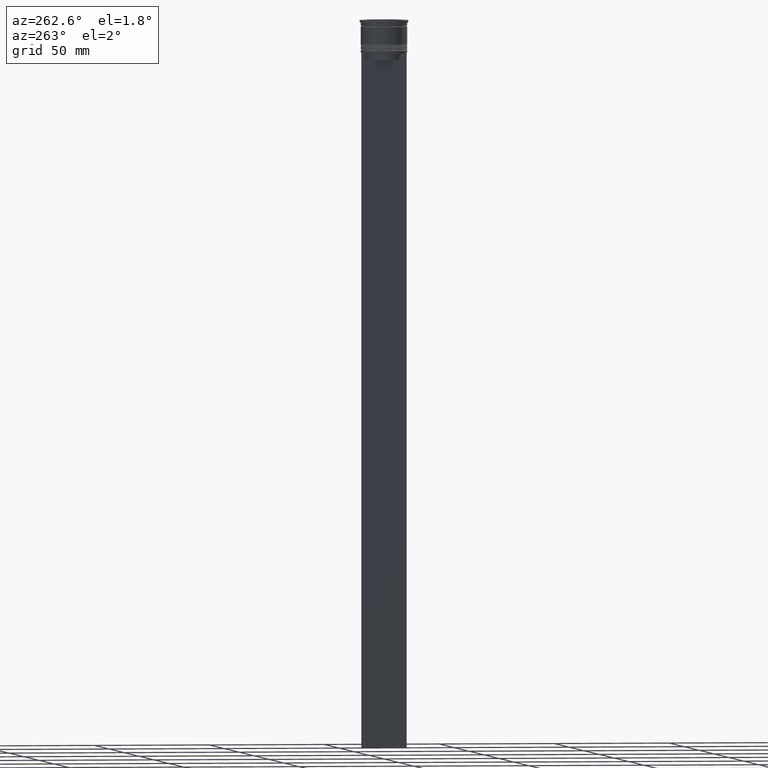
[diagram: clean part render]
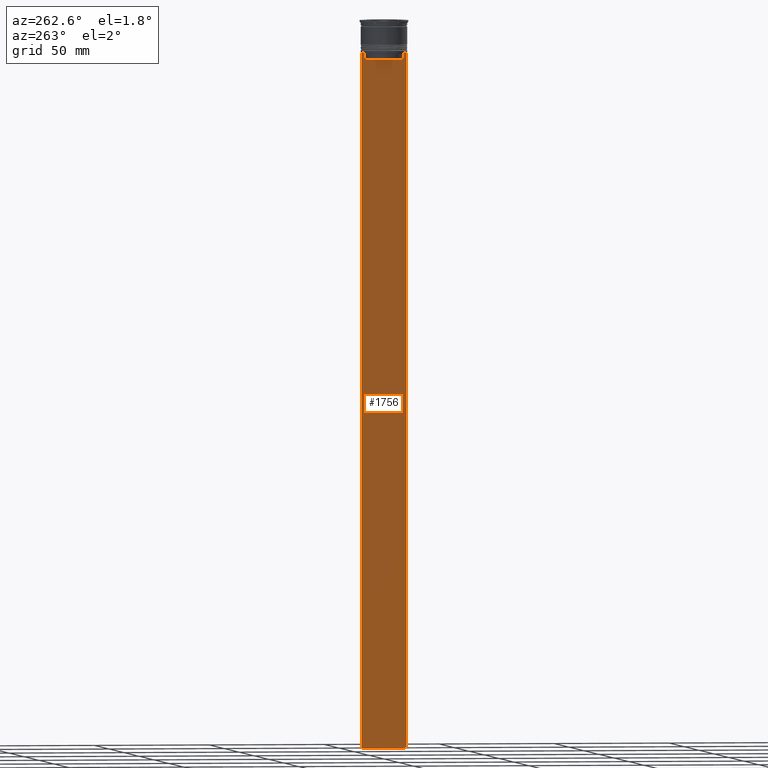
[diagram: same view with one face highlighted and labeled with its STEP entity id]
A machine part, auxiliary view. The second image highlights one B-rep face of the part: STEP entity #1756.
In plain terms, the highlighted planar face has unit normal (-1, 0, 0).
Its self-contained STEP definition (entity closure, byte-faithful):
#19 = VERTEX_POINT ( 'NONE', #1424 ) ;
#92 = CARTESIAN_POINT ( 'NONE',  ( -0.5000000000000001110, -9.749999999999998224, -314.0000000000000000 ) ) ;
#104 = LINE ( 'NONE', #893, #1626 ) ;
#125 = CARTESIAN_POINT ( 'NONE',  ( -0.5000000000000001110, -9.749999999999998224, -14.00000000000000178 ) ) ;
#155 = DIRECTION ( 'NONE',  ( 0.000000000000000000, 0.000000000000000000, -1.000000000000000000 ) ) ;
#158 = DIRECTION ( 'NONE',  ( 0.000000000000000000, -1.000000000000000000, 0.000000000000000000 ) ) ;
#205 = FACE_OUTER_BOUND ( 'NONE', #1524, .T. ) ;
#222 = ORIENTED_EDGE ( 'NONE', *, *, #1122, .F. ) ;
#304 = EDGE_CURVE ( 'NONE', #19, #1820, #2304, .T. ) ;
#335 = VECTOR ( 'NONE', #1508, 1000.000000000000000 ) ;
#380 = CARTESIAN_POINT ( 'NONE',  ( -0.5000000000000001110, -9.749999999999998224, 5.525624189766635830 ) ) ;
#390 = VECTOR ( 'NONE', #155, 1000.000000000000000 ) ;
#461 = AXIS2_PLACEMENT_3D ( 'NONE', #1005, #645, #1784 ) ;
#473 = DIRECTION ( 'NONE',  ( 0.000000000000000000, 1.000000000000000000, 0.000000000000000000 ) ) ;
#474 = VECTOR ( 'NONE', #2316, 1000.000000000000000 ) ;
#523 = CARTESIAN_POINT ( 'NONE',  ( -0.5000000000000001110, 8.552060201981381837, -14.33334167021640226 ) ) ;
#559 = LINE ( 'NONE', #1181, #1093 ) ;
#589 = B_SPLINE_CURVE_WITH_KNOTS ( 'NONE', 3,
 ( #2413, #1822, #2400, #1794 ),
 .UNSPECIFIED., .F., .F.,
 ( 4, 4 ),
 ( 0.03898465126933130243, 0.03969388910599658260 ),
 .UNSPECIFIED. ) ;
#604 = ORIENTED_EDGE ( 'NONE', *, *, #1800, .F. ) ;
#645 = DIRECTION ( 'NONE',  ( -1.000000000000000000, 0.000000000000000000, 0.000000000000000000 ) ) ;
#651 = B_SPLINE_CURVE_WITH_KNOTS ( 'NONE', 3,
 ( #917, #751, #523, #2501 ),
 .UNSPECIFIED., .F., .F.,
 ( 4, 4 ),
 ( 0.01511546479386908018, 0.01582316445439079997 ),
 .UNSPECIFIED. ) ;
#748 = CARTESIAN_POINT ( 'NONE',  ( -0.5000000000000001110, -9.749999999999998224, -14.00000000000000178 ) ) ;
#751 = CARTESIAN_POINT ( 'NONE',  ( -0.5000000000000001110, 8.719005771582351016, -14.16667453442324742 ) ) ;
#763 = LINE ( 'NONE', #380, #390 ) ;
#781 = LINE ( 'NONE', #1001, #1418 ) ;
#784 = EDGE_CURVE ( 'NONE', #1806, #1665, #781, .T. ) ;
#795 = VERTEX_POINT ( 'NONE', #2185 ) ;
#839 = VERTEX_POINT ( 'NONE', #1170 ) ;
#845 = VECTOR ( 'NONE', #158, 1000.000000000000000 ) ;
#872 = ORIENTED_EDGE ( 'NONE', *, *, #1187, .F. ) ;
#893 = CARTESIAN_POINT ( 'NONE',  ( -0.5000000000000001110, -9.749999999999998224, -14.00000000000000178 ) ) ;
#916 = VERTEX_POINT ( 'NONE', #1826 ) ;
#917 = CARTESIAN_POINT ( 'NONE',  ( -0.5000000000000001110, 8.885943956609230199, -14.00000000000000178 ) ) ;
#977 = CARTESIAN_POINT ( 'NONE',  ( -0.5000000000000001110, -9.749999999999998224, -314.0000000000000000 ) ) ;
#1001 = CARTESIAN_POINT ( 'NONE',  ( -0.5000000000000001110, -8.385105843100616241, 0.000000000000000000 ) ) ;
#1005 = CARTESIAN_POINT ( 'NONE',  ( -0.5000000000000001110, -9.749999999999998224, 5.525624189766635830 ) ) ;
#1019 = VERTEX_POINT ( 'NONE', #1402 ) ;
#1093 = VECTOR ( 'NONE', #1388, 1000.000000000000000 ) ;
#1117 = LINE ( 'NONE', #125, #335 ) ;
#1122 = EDGE_CURVE ( 'NONE', #839, #1019, #104, .T. ) ;
#1148 = LINE ( 'NONE', #1325, #845 ) ;
#1170 = CARTESIAN_POINT ( 'NONE',  ( -0.5000000000000001110, 9.749999999999998224, -14.00000000000000178 ) ) ;
#1181 = CARTESIAN_POINT ( 'NONE',  ( -0.5000000000000001110, 9.750000000000001776, 5.525624189766635830 ) ) ;
#1187 = EDGE_CURVE ( 'NONE', #1240, #2547, #763, .T. ) ;
#1192 = CARTESIAN_POINT ( 'NONE',  ( -0.5000000000000001110, 8.385105843100616241, -17.00000000000000000 ) ) ;
#1238 = ORIENTED_EDGE ( 'NONE', *, *, #2458, .F. ) ;
#1240 = VERTEX_POINT ( 'NONE', #748 ) ;
#1249 = EDGE_CURVE ( 'NONE', #839, #916, #559, .T. ) ;
#1325 = CARTESIAN_POINT ( 'NONE',  ( -0.5000000000000001110, 8.400000000000003908, -17.00000000000000000 ) ) ;
#1388 = DIRECTION ( 'NONE',  ( 0.000000000000000000, 0.000000000000000000, -1.000000000000000000 ) ) ;
#1402 = CARTESIAN_POINT ( 'NONE',  ( -0.5000000000000001110, 8.885943956609230199, -14.00000000000000178 ) ) ;
#1405 = ORIENTED_EDGE ( 'NONE', *, *, #2276, .F. ) ;
#1418 = VECTOR ( 'NONE', #1988, 1000.000000000000000 ) ;
#1424 = CARTESIAN_POINT ( 'NONE',  ( -0.5000000000000001110, 8.385105843100616241, -14.50000000000000000 ) ) ;
#1508 = DIRECTION ( 'NONE',  ( 0.000000000000000000, -1.000000000000000000, 0.000000000000000000 ) ) ;
#1520 = CARTESIAN_POINT ( 'NONE',  ( -0.5000000000000001110, 8.385105843100616241, 0.000000000000000000 ) ) ;
#1524 = EDGE_LOOP ( 'NONE', ( #1557, #222, #2348, #1405, #872, #1724, #604, #2549, #1238, #1588 ) ) ;
#1552 = VECTOR ( 'NONE', #473, 1000.000000000000000 ) ;
#1557 = ORIENTED_EDGE ( 'NONE', *, *, #2482, .F. ) ;
#1564 = EDGE_CURVE ( 'NONE', #795, #1240, #1117, .T. ) ;
#1588 = ORIENTED_EDGE ( 'NONE', *, *, #304, .F. ) ;
#1606 = PLANE ( 'NONE',  #461 ) ;
#1626 = VECTOR ( 'NONE', #1688, 1000.000000000000000 ) ;
#1641 = LINE ( 'NONE', #92, #1552 ) ;
#1665 = VERTEX_POINT ( 'NONE', #1760 ) ;
#1688 = DIRECTION ( 'NONE',  ( 0.000000000000000000, -1.000000000000000000, 0.000000000000000000 ) ) ;
#1724 = ORIENTED_EDGE ( 'NONE', *, *, #1564, .F. ) ;
#1756 = ADVANCED_FACE ( 'NONE', ( #205 ), #1606, .T. ) ;
#1760 = CARTESIAN_POINT ( 'NONE',  ( -0.5000000000000001110, -8.385105843100616241, -14.50000000000000000 ) ) ;
#1784 = DIRECTION ( 'NONE',  ( 0.000000000000000000, 0.000000000000000000, 1.000000000000000000 ) ) ;
#1794 = CARTESIAN_POINT ( 'NONE',  ( -0.5000000000000001110, -8.885943956609230199, -14.00000000000000178 ) ) ;
#1800 = EDGE_CURVE ( 'NONE', #1665, #795, #589, .T. ) ;
#1806 = VERTEX_POINT ( 'NONE', #1810 ) ;
#1810 = CARTESIAN_POINT ( 'NONE',  ( -0.5000000000000001110, -8.385105843100616241, -17.00000000000000000 ) ) ;
#1820 = VERTEX_POINT ( 'NONE', #1192 ) ;
#1822 = CARTESIAN_POINT ( 'NONE',  ( -0.5000000000000001110, -8.552060194457773434, -14.33334167772667023 ) ) ;
#1826 = CARTESIAN_POINT ( 'NONE',  ( -0.5000000000000001110, 9.750000000000001776, -314.0000000000000000 ) ) ;
#1988 = DIRECTION ( 'NONE',  ( -0.000000000000000000, -0.000000000000000000, 1.000000000000000000 ) ) ;
#2185 = CARTESIAN_POINT ( 'NONE',  ( -0.5000000000000001110, -8.885943956609230199, -14.00000000000000178 ) ) ;
#2276 = EDGE_CURVE ( 'NONE', #2547, #916, #1641, .T. ) ;
#2304 = LINE ( 'NONE', #1520, #474 ) ;
#2316 = DIRECTION ( 'NONE',  ( 0.000000000000000000, 0.000000000000000000, -1.000000000000000000 ) ) ;
#2348 = ORIENTED_EDGE ( 'NONE', *, *, #1249, .T. ) ;
#2400 = CARTESIAN_POINT ( 'NONE',  ( -0.5000000000000001110, -8.719005764482790966, -14.16667454151159689 ) ) ;
#2413 = CARTESIAN_POINT ( 'NONE',  ( -0.5000000000000001110, -8.385105843100616241, -14.50000000000000000 ) ) ;
#2458 = EDGE_CURVE ( 'NONE', #1820, #1806, #1148, .T. ) ;
#2482 = EDGE_CURVE ( 'NONE', #1019, #19, #651, .T. ) ;
#2501 = CARTESIAN_POINT ( 'NONE',  ( -0.5000000000000001110, 8.385105843100616241, -14.50000000000000000 ) ) ;
#2547 = VERTEX_POINT ( 'NONE', #977 ) ;
#2549 = ORIENTED_EDGE ( 'NONE', *, *, #784, .F. ) ;